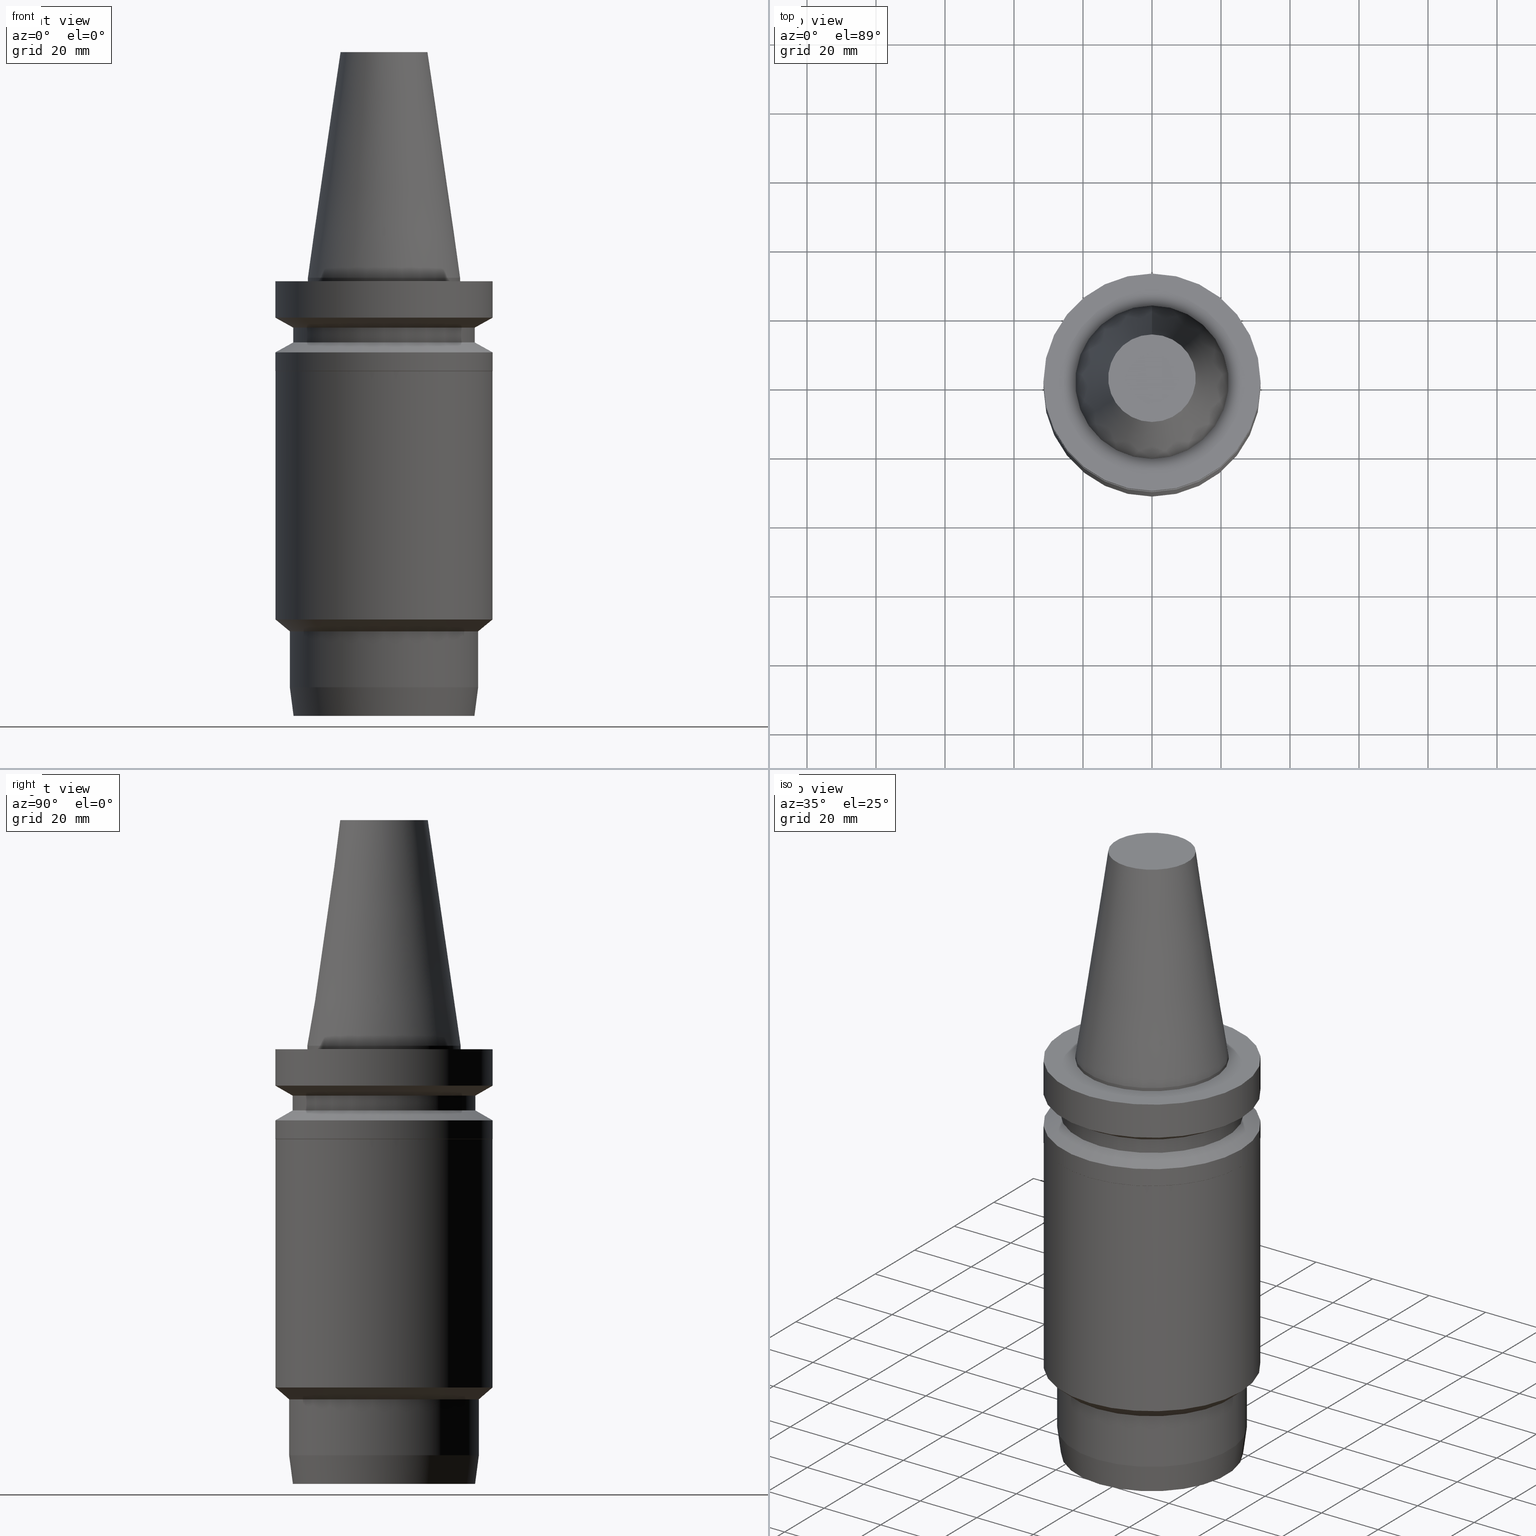
[diagram: canonical four-view strip — front | top / right | iso, engineering-drawing reading convention]
A machine part, canonical four-view strip (front | top / right | iso — engineering-drawing reading convention). The complete STEP part file that produces these views, byte-faithful:
ISO-10303-21;
HEADER;
FILE_DESCRIPTION((''),'1');
FILE_NAME('V:/90_\X2\53D65F9730C730FC30BF\X0\/00_\X2\6DE18DEF30C730FC30BF\X0\/ALL/BBT-BKUS\X2\FF76FF80FF9BFF78FF9E752852A05DE556F3\X0\201801/BBT40-HDC/BBT40-HDC1.000-5.stp','2018-02-07T05:23:47',(''),(''),'Spatial Interop R21 SP3','Kubotek KeyCreator 2011 V10.0.2 (22737)',' ');
FILE_SCHEMA(('automotive_design'));
ENDSEC;
DATA;
#1=MECHANICAL_DESIGN_GEOMETRIC_PRESENTATION_REPRESENTATION(' ',(#10,#11,#12,#13,#14,#15,#16,#17,#18,#19,#20,#21,#22,#23,#24,#25,#26,#27,#28,#29,#30,#31,#32,#33,#34,#35,#36,#37,#38,#39),#6);
#2=PRODUCT_DEFINITION_CONTEXT('',#40,'design');
#3=APPLICATION_PROTOCOL_DEFINITION('INTERNATIONAL STANDARD','automotive_design',1994,#40);
#4=PRODUCT_CATEGORY_RELATIONSHIP('NONE','NONE',#41,#42);
#5=SHAPE_DEFINITION_REPRESENTATION(#43,#44);
#6= (GEOMETRIC_REPRESENTATION_CONTEXT(3)GLOBAL_UNCERTAINTY_ASSIGNED_CONTEXT((#47))GLOBAL_UNIT_ASSIGNED_CONTEXT((#49,#50,#51))REPRESENTATION_CONTEXT('NONE','WORKSPACE'));
#10=STYLED_ITEM('',(#53,#54),#55);
#11=STYLED_ITEM('',(#56,#57),#58);
#12=STYLED_ITEM('',(#59),#60);
#13=STYLED_ITEM('',(#61,#62),#63);
#14=STYLED_ITEM('',(#64),#65);
#15=STYLED_ITEM('',(#66,#67),#68);
#16=STYLED_ITEM('',(#69,#70),#71);
#17=STYLED_ITEM('',(#72,#73),#74);
#18=STYLED_ITEM('',(#75),#76);
#19=STYLED_ITEM('',(#77),#78);
#20=STYLED_ITEM('',(#79,#80),#81);
#21=STYLED_ITEM('',(#82),#83);
#22=STYLED_ITEM('',(#84),#85);
#23=STYLED_ITEM('',(#86,#87),#88);
#24=STYLED_ITEM('',(#89,#90),#91);
#25=STYLED_ITEM('',(#92),#93);
#26=STYLED_ITEM('',(#94),#95);
#27=STYLED_ITEM('',(#96),#97);
#28=STYLED_ITEM('',(#98,#99),#100);
#29=STYLED_ITEM('',(#101,#102),#103);
#30=STYLED_ITEM('',(#104),#105);
#31=STYLED_ITEM('',(#106,#107),#108);
#32=STYLED_ITEM('',(#109),#110);
#33=STYLED_ITEM('',(#111,#112),#113);
#34=STYLED_ITEM('',(#114,#115),#116);
#35=STYLED_ITEM('',(#117),#118);
#36=STYLED_ITEM('',(#119,#120),#121);
#37=STYLED_ITEM('',(#122),#123);
#38=STYLED_ITEM('',(#124,#125),#126);
#39=STYLED_ITEM('',(#127),#128);
#40=APPLICATION_CONTEXT(' ');
#41=PRODUCT_CATEGORY('part','NONE');
#42=PRODUCT_RELATED_PRODUCT_CATEGORY('detail',' ',(#129));
#43=PRODUCT_DEFINITION_SHAPE('NONE','NONE',#130);
#44=ADVANCED_BREP_SHAPE_REPRESENTATION('Unnamed[1]',(#63,#131),#6);
#47=UNCERTAINTY_MEASURE_WITH_UNIT(LENGTH_MEASURE(1.0E-006),#49,'','');
#49= (CONVERSION_BASED_UNIT('MILLIMETRE',#134)LENGTH_UNIT()NAMED_UNIT(#137));
#50= (NAMED_UNIT(#139)PLANE_ANGLE_UNIT()SI_UNIT($,.RADIAN.));
#51= (NAMED_UNIT(#139)SOLID_ANGLE_UNIT()SI_UNIT($,.STERADIAN.));
#53=PRESENTATION_STYLE_ASSIGNMENT((#145));
#54=PRESENTATION_STYLE_ASSIGNMENT((#146));
#55=ADVANCED_FACE('Unnamed[1]',(#147),#148,.T.);
#56=PRESENTATION_STYLE_ASSIGNMENT((#149));
#57=PRESENTATION_STYLE_ASSIGNMENT((#150));
#58=ADVANCED_FACE('Unnamed[1]',(#151,#152),#153,.T.);
#59=PRESENTATION_STYLE_ASSIGNMENT((#154));
#60=EDGE_CURVE('Unnamed[1]',#155,#155,#156,.T.);
#61=PRESENTATION_STYLE_ASSIGNMENT((#157));
#62=PRESENTATION_STYLE_ASSIGNMENT((#158));
#63=MANIFOLD_SOLID_BREP('Unnamed[1]',#159);
#64=PRESENTATION_STYLE_ASSIGNMENT((#160));
#65=EDGE_CURVE('Unnamed[1]',#161,#161,#162,.T.);
#66=PRESENTATION_STYLE_ASSIGNMENT((#163));
#67=PRESENTATION_STYLE_ASSIGNMENT((#164));
#68=ADVANCED_FACE('Unnamed[1]',(#165,#166),#167,.T.);
#69=PRESENTATION_STYLE_ASSIGNMENT((#168));
#70=PRESENTATION_STYLE_ASSIGNMENT((#169));
#71=ADVANCED_FACE('Unnamed[1]',(#170,#171),#172,.T.);
#72=PRESENTATION_STYLE_ASSIGNMENT((#173));
#73=PRESENTATION_STYLE_ASSIGNMENT((#174));
#74=ADVANCED_FACE('Unnamed[1]',(#175,#176),#177,.T.);
#75=PRESENTATION_STYLE_ASSIGNMENT((#178));
#76=EDGE_CURVE('Unnamed[1]',#179,#179,#180,.T.);
#77=PRESENTATION_STYLE_ASSIGNMENT((#181));
#78=EDGE_CURVE('Unnamed[1]',#182,#182,#183,.T.);
#79=PRESENTATION_STYLE_ASSIGNMENT((#184));
#80=PRESENTATION_STYLE_ASSIGNMENT((#185));
#81=ADVANCED_FACE('Unnamed[1]',(#186,#187),#188,.T.);
#82=PRESENTATION_STYLE_ASSIGNMENT((#189));
#83=EDGE_CURVE('Unnamed[1]',#190,#190,#191,.T.);
#84=PRESENTATION_STYLE_ASSIGNMENT((#192));
#85=EDGE_CURVE('Unnamed[1]',#193,#193,#194,.T.);
#86=PRESENTATION_STYLE_ASSIGNMENT((#195));
#87=PRESENTATION_STYLE_ASSIGNMENT((#196));
#88=ADVANCED_FACE('Unnamed[1]',(#197,#198),#199,.T.);
#89=PRESENTATION_STYLE_ASSIGNMENT((#200));
#90=PRESENTATION_STYLE_ASSIGNMENT((#201));
#91=ADVANCED_FACE('Unnamed[1]',(#202,#203),#204,.T.);
#92=PRESENTATION_STYLE_ASSIGNMENT((#205));
#93=EDGE_CURVE('Unnamed[1]',#206,#206,#207,.T.);
#94=PRESENTATION_STYLE_ASSIGNMENT((#208));
#95=EDGE_CURVE('Unnamed[1]',#209,#209,#210,.T.);
#96=PRESENTATION_STYLE_ASSIGNMENT((#211));
#97=EDGE_CURVE('Unnamed[1]',#212,#212,#213,.T.);
#98=PRESENTATION_STYLE_ASSIGNMENT((#214));
#99=PRESENTATION_STYLE_ASSIGNMENT((#215));
#100=ADVANCED_FACE('Unnamed[1]',(#216,#217),#218,.T.);
#101=PRESENTATION_STYLE_ASSIGNMENT((#219));
#102=PRESENTATION_STYLE_ASSIGNMENT((#220));
#103=ADVANCED_FACE('Unnamed[1]',(#221),#222,.T.);
#104=PRESENTATION_STYLE_ASSIGNMENT((#223));
#105=EDGE_CURVE('Unnamed[1]',#224,#224,#225,.T.);
#106=PRESENTATION_STYLE_ASSIGNMENT((#226));
#107=PRESENTATION_STYLE_ASSIGNMENT((#227));
#108=ADVANCED_FACE('Unnamed[1]',(#228,#229),#230,.T.);
#109=PRESENTATION_STYLE_ASSIGNMENT((#231));
#110=EDGE_CURVE('Unnamed[1]',#232,#232,#233,.T.);
#111=PRESENTATION_STYLE_ASSIGNMENT((#234));
#112=PRESENTATION_STYLE_ASSIGNMENT((#235));
#113=ADVANCED_FACE('Unnamed[1]',(#236,#237),#238,.T.);
#114=PRESENTATION_STYLE_ASSIGNMENT((#239));
#115=PRESENTATION_STYLE_ASSIGNMENT((#240));
#116=ADVANCED_FACE('Unnamed[1]',(#241,#242),#243,.T.);
#117=PRESENTATION_STYLE_ASSIGNMENT((#244));
#118=EDGE_CURVE('Unnamed[1]',#245,#245,#246,.T.);
#119=PRESENTATION_STYLE_ASSIGNMENT((#247));
#120=PRESENTATION_STYLE_ASSIGNMENT((#248));
#121=ADVANCED_FACE('Unnamed[1]',(#249,#250),#251,.T.);
#122=PRESENTATION_STYLE_ASSIGNMENT((#252));
#123=EDGE_CURVE('Unnamed[1]',#253,#253,#254,.T.);
#124=PRESENTATION_STYLE_ASSIGNMENT((#255));
#125=PRESENTATION_STYLE_ASSIGNMENT((#256));
#126=ADVANCED_FACE('Unnamed[1]',(#257,#258),#259,.T.);
#127=PRESENTATION_STYLE_ASSIGNMENT((#260));
#128=EDGE_CURVE('Unnamed[1]',#261,#261,#262,.T.);
#129=PRODUCT('Unnamed[1]','Unnamed[1]','PART-Unnamed[1]-DESC',(#263));
#130=PRODUCT_DEFINITION('NONE','NONE',#264,#2);
#131=AXIS2_PLACEMENT_3D('',#265,#266,#267);
#134=LENGTH_MEASURE_WITH_UNIT(LENGTH_MEASURE(1.0),#268);
#137=DIMENSIONAL_EXPONENTS(1.0,0.0,0.0,0.0,0.0,0.0,0.0);
#139=DIMENSIONAL_EXPONENTS(0.0,0.0,0.0,0.0,0.0,0.0,0.0);
#145=SURFACE_STYLE_USAGE(.BOTH.,#269);
#146=CURVE_STYLE('',#270,POSITIVE_LENGTH_MEASURE(1000.0),#271);
#147=FACE_OUTER_BOUND('',#272,.T.);
#148=PLANE('',#273);
#149=SURFACE_STYLE_USAGE(.BOTH.,#274);
#150=CURVE_STYLE('',#275,POSITIVE_LENGTH_MEASURE(1000.0),#276);
#151=FACE_BOUND('',#277,.T.);
#152=FACE_BOUND('',#278,.T.);
#153=CYLINDRICAL_SURFACE('',#279,26.4999999999997);
#154=CURVE_STYLE('',#280,POSITIVE_LENGTH_MEASURE(1000.0),#281);
#155=VERTEX_POINT('',#282);
#156=CIRCLE('',#283,27.4999999999989);
#157=SURFACE_STYLE_USAGE(.BOTH.,#284);
#158=CURVE_STYLE('',#285,POSITIVE_LENGTH_MEASURE(1000.0),#286);
#159=CLOSED_SHELL('',(#55,#71,#81,#68,#88,#126,#58,#74,#121,#108,#100,#113,#91,#116,#103));
#160=CURVE_STYLE('',#287,POSITIVE_LENGTH_MEASURE(1000.0),#288);
#161=VERTEX_POINT('',#289);
#162=CIRCLE('',#290,31.5000000000003);
#163=SURFACE_STYLE_USAGE(.BOTH.,#291);
#164=CURVE_STYLE('',#292,POSITIVE_LENGTH_MEASURE(1000.0),#293);
#165=FACE_OUTER_BOUND('',#294,.T.);
#166=FACE_BOUND('',#295,.T.);
#167=PLANE('',#296);
#168=SURFACE_STYLE_USAGE(.BOTH.,#297);
#169=CURVE_STYLE('',#298,POSITIVE_LENGTH_MEASURE(1000.0),#299);
#170=FACE_BOUND('',#300,.T.);
#171=FACE_BOUND('',#301,.T.);
#172=CONICAL_SURFACE('',#302,17.4562500000001,0.144812498238936);
#173=SURFACE_STYLE_USAGE(.BOTH.,#303);
#174=CURVE_STYLE('',#304,POSITIVE_LENGTH_MEASURE(1000.0),#305);
#175=FACE_BOUND('',#306,.T.);
#176=FACE_BOUND('',#307,.T.);
#177=CONICAL_SURFACE('',#308,29.0000000000003,1.04719755119651);
#178=CURVE_STYLE('',#309,POSITIVE_LENGTH_MEASURE(1000.0),#310);
#179=VERTEX_POINT('',#311);
#180=CIRCLE('',#312,31.5000000000003);
#181=CURVE_STYLE('',#313,POSITIVE_LENGTH_MEASURE(1000.0),#314);
#182=VERTEX_POINT('',#315);
#183=CIRCLE('',#316,22.225);
#184=SURFACE_STYLE_USAGE(.BOTH.,#317);
#185=CURVE_STYLE('',#318,POSITIVE_LENGTH_MEASURE(1000.0),#319);
#186=FACE_BOUND('',#320,.T.);
#187=FACE_BOUND('',#321,.T.);
#188=CYLINDRICAL_SURFACE('',#322,22.225);
#189=CURVE_STYLE('',#323,POSITIVE_LENGTH_MEASURE(1000.0),#324);
#190=VERTEX_POINT('',#325);
#191=CIRCLE('',#326,31.5000000000007);
#192=CURVE_STYLE('',#327,POSITIVE_LENGTH_MEASURE(1000.0),#328);
#193=VERTEX_POINT('',#329);
#194=CIRCLE('',#330,12.6875000000001);
#195=SURFACE_STYLE_USAGE(.BOTH.,#331);
#196=CURVE_STYLE('',#332,POSITIVE_LENGTH_MEASURE(1000.0),#333);
#197=FACE_BOUND('',#334,.T.);
#198=FACE_BOUND('',#335,.T.);
#199=CYLINDRICAL_SURFACE('',#336,31.5);
#200=SURFACE_STYLE_USAGE(.BOTH.,#337);
#201=CURVE_STYLE('',#338,POSITIVE_LENGTH_MEASURE(1000.0),#339);
#202=FACE_BOUND('',#340,.T.);
#203=FACE_BOUND('',#341,.T.);
#204=CYLINDRICAL_SURFACE('',#342,27.4999999999968);
#205=CURVE_STYLE('',#343,POSITIVE_LENGTH_MEASURE(1000.0),#344);
#206=VERTEX_POINT('',#345);
#207=CIRCLE('',#346,22.225);
#208=CURVE_STYLE('',#347,POSITIVE_LENGTH_MEASURE(1000.0),#348);
#209=VERTEX_POINT('',#349);
#210=CIRCLE('',#350,31.4500000000005);
#211=CURVE_STYLE('',#351,POSITIVE_LENGTH_MEASURE(1000.0),#352);
#212=VERTEX_POINT('',#353);
#213=CIRCLE('',#354,31.4999999999996);
#214=SURFACE_STYLE_USAGE(.BOTH.,#355);
#215=CURVE_STYLE('',#356,POSITIVE_LENGTH_MEASURE(1000.0),#357);
#216=FACE_BOUND('',#358,.T.);
#217=FACE_BOUND('',#359,.T.);
#218=CYLINDRICAL_SURFACE('',#360,31.4499999999876);
#219=SURFACE_STYLE_USAGE(.BOTH.,#361);
#220=CURVE_STYLE('',#362,POSITIVE_LENGTH_MEASURE(1000.0),#363);
#221=FACE_OUTER_BOUND('',#364,.T.);
#222=PLANE('',#365);
#223=CURVE_STYLE('',#366,POSITIVE_LENGTH_MEASURE(1000.0),#367);
#224=VERTEX_POINT('',#368);
#225=CIRCLE('',#369,26.5);
#226=SURFACE_STYLE_USAGE(.BOTH.,#370);
#227=CURVE_STYLE('',#371,POSITIVE_LENGTH_MEASURE(1000.0),#372);
#228=FACE_BOUND('',#373,.T.);
#229=FACE_BOUND('',#374,.T.);
#230=CONICAL_SURFACE('',#375,31.4749999999875,0.785398163426189);
#231=CURVE_STYLE('',#376,POSITIVE_LENGTH_MEASURE(1000.0),#377);
#232=VERTEX_POINT('',#378);
#233=CIRCLE('',#379,26.4085690956199);
#234=SURFACE_STYLE_USAGE(.BOTH.,#380);
#235=CURVE_STYLE('',#381,POSITIVE_LENGTH_MEASURE(1000.0),#382);
#236=FACE_BOUND('',#383,.T.);
#237=FACE_BOUND('',#384,.T.);
#238=CONICAL_SURFACE('',#385,29.4749999999997,0.854987653868246);
#239=SURFACE_STYLE_USAGE(.BOTH.,#386);
#240=CURVE_STYLE('',#387,POSITIVE_LENGTH_MEASURE(1000.0),#388);
#241=FACE_BOUND('',#389,.T.);
#242=FACE_BOUND('',#390,.T.);
#243=CONICAL_SURFACE('',#391,26.9542845478074,0.130899693899448);
#244=CURVE_STYLE('',#392,POSITIVE_LENGTH_MEASURE(1000.0),#393);
#245=VERTEX_POINT('',#394);
#246=CIRCLE('',#395,27.4999999999948);
#247=SURFACE_STYLE_USAGE(.BOTH.,#396);
#248=CURVE_STYLE('',#397,POSITIVE_LENGTH_MEASURE(1000.0),#398);
#249=FACE_BOUND('',#399,.T.);
#250=FACE_BOUND('',#400,.T.);
#251=CYLINDRICAL_SURFACE('',#401,31.5000000000005);
#252=CURVE_STYLE('',#402,POSITIVE_LENGTH_MEASURE(1000.0),#403);
#253=VERTEX_POINT('',#404);
#254=CIRCLE('',#405,26.4999999999994);
#255=SURFACE_STYLE_USAGE(.BOTH.,#406);
#256=CURVE_STYLE('',#407,POSITIVE_LENGTH_MEASURE(1000.0),#408);
#257=FACE_BOUND('',#409,.T.);
#258=FACE_BOUND('',#410,.T.);
#259=CONICAL_SURFACE('',#411,28.9999999999999,1.04719755119657);
#260=CURVE_STYLE('',#412,POSITIVE_LENGTH_MEASURE(1000.0),#413);
#261=VERTEX_POINT('',#414);
#262=CIRCLE('',#415,31.4499999999746);
#263=PRODUCT_CONTEXT('',#40,'mechanical');
#264=PRODUCT_DEFINITION_FORMATION_WITH_SPECIFIED_SOURCE(' ','NONE',#129,.NOT_KNOWN.);
#265=CARTESIAN_POINT('',(0.0,0.0,0.0));
#266=DIRECTION('',(0.0,0.0,1.0));
#267=DIRECTION('',(1.0,0.0,0.0));
#268= (NAMED_UNIT(#137)LENGTH_UNIT()SI_UNIT(.MILLI.,.METRE.));
#269=SURFACE_SIDE_STYLE('',(#417));
#270=DRAUGHTING_PRE_DEFINED_CURVE_FONT('continuous');
#271=COLOUR_RGB('',0.0,1.0,0.0);
#272=EDGE_LOOP('',(#418));
#273=AXIS2_PLACEMENT_3D('',#419,#420,#421);
#274=SURFACE_SIDE_STYLE('',(#422));
#275=DRAUGHTING_PRE_DEFINED_CURVE_FONT('continuous');
#276=COLOUR_RGB('',0.0,1.0,0.0);
#277=EDGE_LOOP('',(#423));
#278=EDGE_LOOP('',(#424));
#279=AXIS2_PLACEMENT_3D('',#425,#426,#427);
#280=DRAUGHTING_PRE_DEFINED_CURVE_FONT('continuous');
#281=COLOUR_RGB('',0.0,1.0,0.0);
#282=CARTESIAN_POINT('',(6.27587521720903E-015,27.4999999999989,-102.492820323028));
#283=AXIS2_PLACEMENT_3D('',#428,#429,#430);
#284=SURFACE_SIDE_STYLE('',(#431));
#285=DRAUGHTING_PRE_DEFINED_CURVE_FONT('continuous');
#286=COLOUR_RGB('',0.0,1.0,0.0);
#287=DRAUGHTING_PRE_DEFINED_CURVE_FONT('continuous');
#288=COLOUR_RGB('',0.0,1.0,0.0);
#289=CARTESIAN_POINT('',(7.08182973902924E-016,31.5000000000004,-11.5655056526664));
#290=AXIS2_PLACEMENT_3D('',#432,#433,#434);
#291=SURFACE_SIDE_STYLE('',(#435));
#292=DRAUGHTING_PRE_DEFINED_CURVE_FONT('continuous');
#293=COLOUR_RGB('',0.0,1.0,0.0);
#294=EDGE_LOOP('',(#436));
#295=EDGE_LOOP('',(#437));
#296=AXIS2_PLACEMENT_3D('',#438,#439,#440);
#297=SURFACE_SIDE_STYLE('',(#441));
#298=DRAUGHTING_PRE_DEFINED_CURVE_FONT('continuous');
#299=COLOUR_RGB('',0.0,1.0,0.0);
#300=EDGE_LOOP('',(#442));
#301=EDGE_LOOP('',(#443));
#302=AXIS2_PLACEMENT_3D('',#444,#445,#446);
#303=SURFACE_SIDE_STYLE('',(#447));
#304=DRAUGHTING_PRE_DEFINED_CURVE_FONT('continuous');
#305=COLOUR_RGB('',0.0,1.0,0.0);
#306=EDGE_LOOP('',(#448));
#307=EDGE_LOOP('',(#449));
#308=AXIS2_PLACEMENT_3D('',#450,#451,#452);
#309=DRAUGHTING_PRE_DEFINED_CURVE_FONT('continuous');
#310=COLOUR_RGB('',0.0,1.0,0.0);
#311=CARTESIAN_POINT('',(1.65327317884754E-015,31.5000000000004,-26.9999999999773));
#312=AXIS2_PLACEMENT_3D('',#453,#454,#455);
#313=DRAUGHTING_PRE_DEFINED_CURVE_FONT('continuous');
#314=COLOUR_RGB('',0.0,1.0,0.0);
#315=CARTESIAN_POINT('',(6.12323399573622E-017,22.2250000000001,-0.999999999999912));
#316=AXIS2_PLACEMENT_3D('',#456,#457,#458);
#317=SURFACE_SIDE_STYLE('',(#459));
#318=DRAUGHTING_PRE_DEFINED_CURVE_FONT('continuous');
#319=COLOUR_RGB('',0.0,1.0,0.0);
#320=EDGE_LOOP('',(#460));
#321=EDGE_LOOP('',(#461));
#322=AXIS2_PLACEMENT_3D('',#462,#463,#464);
#323=DRAUGHTING_PRE_DEFINED_CURVE_FONT('continuous');
#324=COLOUR_RGB('',0.0,1.0,0.0);
#325=CARTESIAN_POINT('',(1.32473071268174E-015,31.5000000000007,-21.6344943473346));
#326=AXIS2_PLACEMENT_3D('',#465,#466,#467);
#327=DRAUGHTING_PRE_DEFINED_CURVE_FONT('continuous');
#328=COLOUR_RGB('',0.0,1.0,0.0);
#329=CARTESIAN_POINT('',(-4.00459503321185E-015,12.6875000000002,65.4000000000001));
#330=AXIS2_PLACEMENT_3D('',#468,#469,#470);
#331=SURFACE_SIDE_STYLE('',(#471));
#332=DRAUGHTING_PRE_DEFINED_CURVE_FONT('continuous');
#333=COLOUR_RGB('',0.0,1.0,0.0);
#334=EDGE_LOOP('',(#472));
#335=EDGE_LOOP('',(#473));
#336=AXIS2_PLACEMENT_3D('',#474,#475,#476);
#337=SURFACE_SIDE_STYLE('',(#477));
#338=DRAUGHTING_PRE_DEFINED_CURVE_FONT('continuous');
#339=COLOUR_RGB('',0.0,1.0,0.0);
#340=EDGE_LOOP('',(#478));
#341=EDGE_LOOP('',(#479));
#342=AXIS2_PLACEMENT_3D('',#480,#481,#482);
#343=DRAUGHTING_PRE_DEFINED_CURVE_FONT('continuous');
#344=COLOUR_RGB('',0.0,1.0,0.0);
#345=CARTESIAN_POINT('',(1.71319921032766E-029,22.2250000000001,-2.8153873565375E-013));
#346=AXIS2_PLACEMENT_3D('',#483,#484,#485);
#347=DRAUGHTING_PRE_DEFINED_CURVE_FONT('continuous');
#348=COLOUR_RGB('',0.0,1.0,0.0);
#349=CARTESIAN_POINT('',(6.06552779486206E-015,31.4500000000005,-99.0575862213517));
#350=AXIS2_PLACEMENT_3D('',#486,#487,#488);
#351=DRAUGHTING_PRE_DEFINED_CURVE_FONT('continuous');
#352=COLOUR_RGB('',0.0,1.0,0.0);
#353=CARTESIAN_POINT('',(6.12323399573568E-017,31.4999999999997,-0.999999999999825));
#354=AXIS2_PLACEMENT_3D('',#489,#490,#491);
#355=SURFACE_SIDE_STYLE('',(#492));
#356=DRAUGHTING_PRE_DEFINED_CURVE_FONT('continuous');
#357=COLOUR_RGB('',0.0,1.0,0.0);
#358=EDGE_LOOP('',(#493));
#359=EDGE_LOOP('',(#494));
#360=AXIS2_PLACEMENT_3D('',#495,#496,#497);
#361=SURFACE_SIDE_STYLE('',(#498));
#362=DRAUGHTING_PRE_DEFINED_CURVE_FONT('continuous');
#363=COLOUR_RGB('',0.0,1.0,0.0);
#364=EDGE_LOOP('',(#499));
#365=AXIS2_PLACEMENT_3D('',#500,#501,#502);
#366=DRAUGHTING_PRE_DEFINED_CURVE_FONT('continuous');
#367=COLOUR_RGB('',0.0,1.0,0.0);
#368=CARTESIAN_POINT('',(1.1479681728942E-015,26.5,-18.7477430013855));
#369=AXIS2_PLACEMENT_3D('',#503,#504,#505);
#370=SURFACE_SIDE_STYLE('',(#506));
#371=DRAUGHTING_PRE_DEFINED_CURVE_FONT('continuous');
#372=COLOUR_RGB('',0.0,1.0,0.0);
#373=EDGE_LOOP('',(#507));
#374=EDGE_LOOP('',(#508));
#375=AXIS2_PLACEMENT_3D('',#509,#510,#511);
#376=DRAUGHTING_PRE_DEFINED_CURVE_FONT('continuous');
#377=COLOUR_RGB('',0.0,1.0,0.0);
#378=CARTESIAN_POINT('',(7.77650717458571E-015,26.4085690956199,-127.0));
#379=AXIS2_PLACEMENT_3D('',#512,#513,#514);
#380=SURFACE_SIDE_STYLE('',(#515));
#381=DRAUGHTING_PRE_DEFINED_CURVE_FONT('continuous');
#382=COLOUR_RGB('',0.0,1.0,0.0);
#383=EDGE_LOOP('',(#516));
#384=EDGE_LOOP('',(#517));
#385=AXIS2_PLACEMENT_3D('',#518,#519,#520);
#386=SURFACE_SIDE_STYLE('',(#521));
#387=DRAUGHTING_PRE_DEFINED_CURVE_FONT('continuous');
#388=COLOUR_RGB('',0.0,1.0,0.0);
#389=EDGE_LOOP('',(#522));
#390=EDGE_LOOP('',(#523));
#391=AXIS2_PLACEMENT_3D('',#524,#525,#526);
#392=DRAUGHTING_PRE_DEFINED_CURVE_FONT('continuous');
#393=COLOUR_RGB('',0.0,1.0,0.0);
#394=CARTESIAN_POINT('',(7.26887633277537E-015,27.4999999999948,-118.709759219332));
#395=AXIS2_PLACEMENT_3D('',#527,#528,#529);
#396=SURFACE_SIDE_STYLE('',(#530));
#397=DRAUGHTING_PRE_DEFINED_CURVE_FONT('continuous');
#398=COLOUR_RGB('',0.0,1.0,0.0);
#399=EDGE_LOOP('',(#531));
#400=EDGE_LOOP('',(#532));
#401=AXIS2_PLACEMENT_3D('',#533,#534,#535);
#402=DRAUGHTING_PRE_DEFINED_CURVE_FONT('continuous');
#403=COLOUR_RGB('',0.0,1.0,0.0);
#404=CARTESIAN_POINT('',(8.8494551369045E-016,26.4999999999995,-14.4522569986152));
#405=AXIS2_PLACEMENT_3D('',#536,#537,#538);
#406=SURFACE_SIDE_STYLE('',(#539));
#407=DRAUGHTING_PRE_DEFINED_CURVE_FONT('continuous');
#408=COLOUR_RGB('',0.0,1.0,0.0);
#409=EDGE_LOOP('',(#540));
#410=EDGE_LOOP('',(#541));
#411=AXIS2_PLACEMENT_3D('',#542,#543,#544);
#412=DRAUGHTING_PRE_DEFINED_CURVE_FONT('continuous');
#413=COLOUR_RGB('',0.0,1.0,0.0);
#414=CARTESIAN_POINT('',(1.65633479584681E-015,31.4499999999747,-27.0500000000002));
#415=AXIS2_PLACEMENT_3D('',#545,#546,#547);
#417=SURFACE_STYLE_FILL_AREA(#548);
#418=ORIENTED_EDGE('',*,*,#85,.F.);
#419=CARTESIAN_POINT('',(-4.00459503321185E-015,6.34375000000014,65.4000000000001));
#420=DIRECTION('',(-6.12323399573677E-017,9.97602686800683E-016,1.0));
#421=DIRECTION('',(-5.62583941297938E-032,-1.0,9.97602686800683E-016));
#422=SURFACE_STYLE_FILL_AREA(#549);
#423=ORIENTED_EDGE('',*,*,#105,.F.);
#424=ORIENTED_EDGE('',*,*,#123,.T.);
#425=CARTESIAN_POINT('',(1.01645684329232E-015,3.89897478859819E-014,-16.6000000000003));
#426=DIRECTION('',(6.12323399573677E-017,-4.59983100815415E-016,-1.0));
#427=DIRECTION('',(2.33386888730046E-032,1.0,-4.59983100815415E-016));
#428=CARTESIAN_POINT('',(6.27587521720903E-015,-5.19497943985536E-016,-102.492820323028));
#429=DIRECTION('',(6.12323399573677E-017,-4.59983100815415E-016,-1.0));
#430=DIRECTION('',(2.33386888730046E-032,1.0,-4.59983100815415E-016));
#431=SURFACE_STYLE_FILL_AREA(#550);
#432=CARTESIAN_POINT('',(7.08182973902923E-016,4.13055302069062E-014,-11.5655056526663));
#433=DIRECTION('',(6.12323399573677E-017,-4.59983100815415E-016,-1.0));
#434=DIRECTION('',(2.33386888730046E-032,1.0,-4.59983100815415E-016));
#435=SURFACE_STYLE_FILL_AREA(#551);
#436=ORIENTED_EDGE('',*,*,#97,.F.);
#437=ORIENTED_EDGE('',*,*,#78,.T.);
#438=CARTESIAN_POINT('',(6.12323399573595E-017,26.8624999999999,-0.999999999999869));
#439=DIRECTION('',(-6.12323399573677E-017,-9.35138060429241E-015,1.0));
#440=DIRECTION('',(5.77434068963536E-031,-1.0,-9.35138060429241E-015));
#441=SURFACE_STYLE_FILL_AREA(#552);
#442=ORIENTED_EDGE('',*,*,#93,.F.);
#443=ORIENTED_EDGE('',*,*,#85,.T.);
#444=CARTESIAN_POINT('',(-2.00229751660592E-015,6.16669147561819E-014,32.6999999999999));
#445=DIRECTION('',(6.12323399573677E-017,-4.59983100815415E-016,-1.0));
#446=DIRECTION('',(2.33386888730046E-032,1.0,-4.59983100815415E-016));
#447=SURFACE_STYLE_FILL_AREA(#553);
#448=ORIENTED_EDGE('',*,*,#83,.F.);
#449=ORIENTED_EDGE('',*,*,#105,.T.);
#450=CARTESIAN_POINT('',(1.23634944278797E-015,3.73378939827537E-014,-20.1911186743601));
#451=DIRECTION('',(6.12323399573677E-017,-4.59983100815415E-016,-1.0));
#452=DIRECTION('',(2.33386888730046E-032,1.0,-4.59983100815415E-016));
#453=CARTESIAN_POINT('',(1.65327317884754E-015,3.42059236375121E-014,-26.9999999999773));
#454=DIRECTION('',(6.12323399573677E-017,-4.59983100815415E-016,-1.0));
#455=DIRECTION('',(2.33386888730046E-032,1.0,-4.59983100815415E-016));
#456=CARTESIAN_POINT('',(6.12323399573616E-017,4.61654842587025E-014,-0.999999999999901));
#457=DIRECTION('',(6.12323399573677E-017,-4.59983100815415E-016,-1.0));
#458=DIRECTION('',(2.33386888730046E-032,1.0,-4.59983100815415E-016));
#459=SURFACE_STYLE_FILL_AREA(#554);
#460=ORIENTED_EDGE('',*,*,#78,.F.);
#461=ORIENTED_EDGE('',*,*,#93,.T.);
#462=CARTESIAN_POINT('',(3.06161699786891E-017,4.63954758091102E-014,-0.500000000000085));
#463=DIRECTION('',(6.12323399573677E-017,-4.59983100815415E-016,-1.0));
#464=DIRECTION('',(2.33386888730046E-032,1.0,-4.59983100815415E-016));
#465=CARTESIAN_POINT('',(1.32473071268174E-015,3.66739655650573E-014,-21.6344943473346));
#466=DIRECTION('',(6.12323399573677E-017,-4.59983100815415E-016,-1.0));
#467=DIRECTION('',(2.33386888730046E-032,1.0,-4.59983100815415E-016));
#468=CARTESIAN_POINT('',(-4.00459503321185E-015,7.67083621528461E-014,65.4000000000001));
#469=DIRECTION('',(6.12323399573677E-017,-4.59983100815415E-016,-1.0));
#470=DIRECTION('',(2.33386888730046E-032,1.0,-4.59983100815415E-016));
#471=SURFACE_STYLE_FILL_AREA(#555);
#472=ORIENTED_EDGE('',*,*,#65,.F.);
#473=ORIENTED_EDGE('',*,*,#97,.T.);
#474=CARTESIAN_POINT('',(3.8470765693014E-016,4.37355072328044E-014,-6.28275282633308));
#475=DIRECTION('',(6.12323399573677E-017,-4.59983100815415E-016,-1.0));
#476=DIRECTION('',(2.33386888730046E-032,1.0,-4.59983100815415E-016));
#477=SURFACE_STYLE_FILL_AREA(#556);
#478=ORIENTED_EDGE('',*,*,#118,.F.);
#479=ORIENTED_EDGE('',*,*,#60,.T.);
#480=CARTESIAN_POINT('',(6.7723757749922E-015,-4.24925686361356E-015,-110.60128977118));
#481=DIRECTION('',(6.12323399573677E-017,-4.59983100815415E-016,-1.0));
#482=DIRECTION('',(2.33386888730046E-032,1.0,-4.59983100815415E-016));
#483=CARTESIAN_POINT('',(1.65331138531142E-029,4.66254673595178E-014,-2.70006239588838E-013));
#484=DIRECTION('',(6.12323399573677E-017,-4.59983100815415E-016,-1.0));
#485=DIRECTION('',(2.33386888730046E-032,1.0,-4.59983100815415E-016));
#486=CARTESIAN_POINT('',(6.06552779486206E-015,1.06065169013022E-015,-99.0575862213517));
#487=DIRECTION('',(6.12323399573677E-017,-4.59983100815415E-016,-1.0));
#488=DIRECTION('',(2.33386888730046E-032,1.0,-4.59983100815415E-016));
#489=CARTESIAN_POINT('',(6.12323399573563E-017,4.61654842587026E-014,-0.999999999999815));
#490=DIRECTION('',(6.12323399573677E-017,-4.59983100815415E-016,-1.0));
#491=DIRECTION('',(2.33386888730046E-032,1.0,-4.59983100815415E-016));
#492=SURFACE_STYLE_FILL_AREA(#557);
#493=ORIENTED_EDGE('',*,*,#95,.F.);
#494=ORIENTED_EDGE('',*,*,#128,.T.);
#495=CARTESIAN_POINT('',(3.86093129535443E-015,1.76217880862955E-014,-63.0537931106759));
#496=DIRECTION('',(6.12323399573677E-017,-4.59983100815415E-016,-1.0));
#497=DIRECTION('',(2.33386888730046E-032,1.0,-4.59983100815415E-016));
#498=SURFACE_STYLE_FILL_AREA(#558);
#499=ORIENTED_EDGE('',*,*,#110,.T.);
#500=CARTESIAN_POINT('',(7.77650717458571E-015,13.20428454781,-127.0));
#501=DIRECTION('',(6.12323399573677E-017,1.22464679914735E-016,-1.0));
#502=DIRECTION('',(-1.23259516440783E-032,1.0,1.22464679914735E-016));
#503=CARTESIAN_POINT('',(1.1479681728942E-015,3.80018224004501E-014,-18.7477430013855));
#504=DIRECTION('',(6.12323399573676E-017,-4.59983100815415E-016,-1.0));
#505=DIRECTION('',(2.33386888730046E-032,1.0,-4.59983100815415E-016));
#506=SURFACE_STYLE_FILL_AREA(#559);
#507=ORIENTED_EDGE('',*,*,#128,.F.);
#508=ORIENTED_EDGE('',*,*,#76,.T.);
#509=CARTESIAN_POINT('',(1.65480398734717E-015,3.41944240599865E-014,-27.0249999999888));
#510=DIRECTION('',(-6.12323399573677E-017,4.59983100815415E-016,1.0));
#511=DIRECTION('',(2.33386888730046E-032,1.0,-4.59983100815415E-016));
#512=CARTESIAN_POINT('',(7.77650717458571E-015,-1.179238644404E-014,-127.0));
#513=DIRECTION('',(6.12323399573677E-017,-4.59983100815415E-016,-1.0));
#514=DIRECTION('',(2.33386888730046E-032,1.0,-4.59983100815415E-016));
#515=SURFACE_STYLE_FILL_AREA(#560);
#516=ORIENTED_EDGE('',*,*,#60,.F.);
#517=ORIENTED_EDGE('',*,*,#95,.T.);
#518=CARTESIAN_POINT('',(6.17070150603554E-015,2.70576873072344E-016,-100.77520327219));
#519=DIRECTION('',(-6.12323399573677E-017,4.59983100815415E-016,1.0));
#520=DIRECTION('',(2.33386888730046E-032,1.0,-4.59983100815415E-016));
#521=SURFACE_STYLE_FILL_AREA(#561);
#522=ORIENTED_EDGE('',*,*,#110,.F.);
#523=ORIENTED_EDGE('',*,*,#118,.T.);
#524=CARTESIAN_POINT('',(7.52269175368054E-015,-9.88570111364077E-015,-122.854879609666));
#525=DIRECTION('',(-6.12323399573677E-017,4.59983100815415E-016,1.0));
#526=DIRECTION('',(2.33386888730046E-032,1.0,-4.59983100815415E-016));
#527=CARTESIAN_POINT('',(7.26887633277537E-015,-7.97901578324158E-015,-118.709759219332));
#528=DIRECTION('',(6.12323399573677E-017,-4.59983100815415E-016,-1.0));
#529=DIRECTION('',(2.33386888730046E-032,1.0,-4.59983100815415E-016));
#530=SURFACE_STYLE_FILL_AREA(#562);
#531=ORIENTED_EDGE('',*,*,#76,.F.);
#532=ORIENTED_EDGE('',*,*,#83,.T.);
#533=CARTESIAN_POINT('',(1.48900194576464E-015,3.54399446012847E-014,-24.317247173656));
#534=DIRECTION('',(6.12323399573677E-017,-4.59983100815415E-016,-1.0));
#535=DIRECTION('',(2.33386888730046E-032,1.0,-4.59983100815415E-016));
#536=CARTESIAN_POINT('',(8.84945513690449E-016,3.99776733715136E-014,-14.4522569986152));
#537=DIRECTION('',(6.12323399573677E-017,-4.59983100815415E-016,-1.0));
#538=DIRECTION('',(2.33386888730046E-032,1.0,-4.59983100815415E-016));
#539=SURFACE_STYLE_FILL_AREA(#563);
#540=ORIENTED_EDGE('',*,*,#123,.F.);
#541=ORIENTED_EDGE('',*,*,#65,.T.);
#542=CARTESIAN_POINT('',(7.96564243796687E-016,4.06416017892099E-014,-13.0088813256408));
#543=DIRECTION('',(-6.12323399573677E-017,4.59983100815415E-016,1.0));
#544=DIRECTION('',(2.33386888730046E-032,1.0,-4.59983100815415E-016));
#545=CARTESIAN_POINT('',(1.65633479584681E-015,3.41829244824608E-014,-27.0500000000002));
#546=DIRECTION('',(6.12323399573677E-017,-4.59983100815415E-016,-1.0));
#547=DIRECTION('',(2.33386888730046E-032,1.0,-4.59983100815415E-016));
#548=FILL_AREA_STYLE('',(#564));
#549=FILL_AREA_STYLE('',(#565));
#550=FILL_AREA_STYLE('',(#566));
#551=FILL_AREA_STYLE('',(#567));
#552=FILL_AREA_STYLE('',(#568));
#553=FILL_AREA_STYLE('',(#569));
#554=FILL_AREA_STYLE('',(#570));
#555=FILL_AREA_STYLE('',(#571));
#556=FILL_AREA_STYLE('',(#572));
#557=FILL_AREA_STYLE('',(#573));
#558=FILL_AREA_STYLE('',(#574));
#559=FILL_AREA_STYLE('',(#575));
#560=FILL_AREA_STYLE('',(#576));
#561=FILL_AREA_STYLE('',(#577));
#562=FILL_AREA_STYLE('',(#578));
#563=FILL_AREA_STYLE('',(#579));
#564=FILL_AREA_STYLE_COLOUR('',#580);
#565=FILL_AREA_STYLE_COLOUR('',#581);
#566=FILL_AREA_STYLE_COLOUR('',#582);
#567=FILL_AREA_STYLE_COLOUR('',#583);
#568=FILL_AREA_STYLE_COLOUR('',#584);
#569=FILL_AREA_STYLE_COLOUR('',#585);
#570=FILL_AREA_STYLE_COLOUR('',#586);
#571=FILL_AREA_STYLE_COLOUR('',#587);
#572=FILL_AREA_STYLE_COLOUR('',#588);
#573=FILL_AREA_STYLE_COLOUR('',#589);
#574=FILL_AREA_STYLE_COLOUR('',#590);
#575=FILL_AREA_STYLE_COLOUR('',#591);
#576=FILL_AREA_STYLE_COLOUR('',#592);
#577=FILL_AREA_STYLE_COLOUR('',#593);
#578=FILL_AREA_STYLE_COLOUR('',#594);
#579=FILL_AREA_STYLE_COLOUR('',#595);
#580=COLOUR_RGB('',0.0,1.0,0.0);
#581=COLOUR_RGB('',0.0,1.0,0.0);
#582=COLOUR_RGB('',0.0,1.0,0.0);
#583=COLOUR_RGB('',0.0,1.0,0.0);
#584=COLOUR_RGB('',0.0,1.0,0.0);
#585=COLOUR_RGB('',0.0,1.0,0.0);
#586=COLOUR_RGB('',0.0,1.0,0.0);
#587=COLOUR_RGB('',0.0,1.0,0.0);
#588=COLOUR_RGB('',0.0,1.0,0.0);
#589=COLOUR_RGB('',0.0,1.0,0.0);
#590=COLOUR_RGB('',0.0,1.0,0.0);
#591=COLOUR_RGB('',0.0,1.0,0.0);
#592=COLOUR_RGB('',0.0,1.0,0.0);
#593=COLOUR_RGB('',0.0,1.0,0.0);
#594=COLOUR_RGB('',0.0,1.0,0.0);
#595=COLOUR_RGB('',0.0,1.0,0.0);
ENDSEC;
END-ISO-10303-21;
